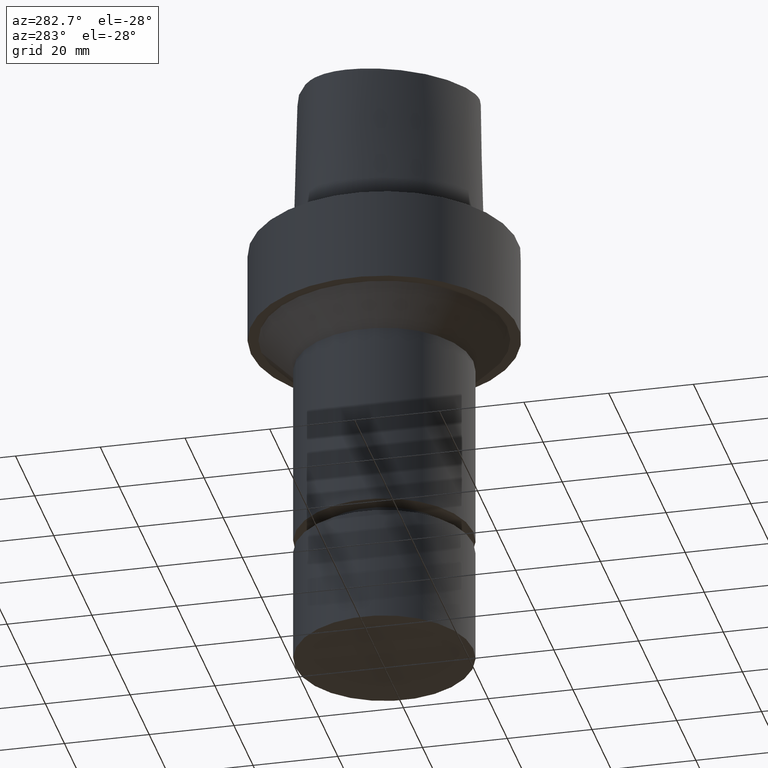
[diagram: clean part render]
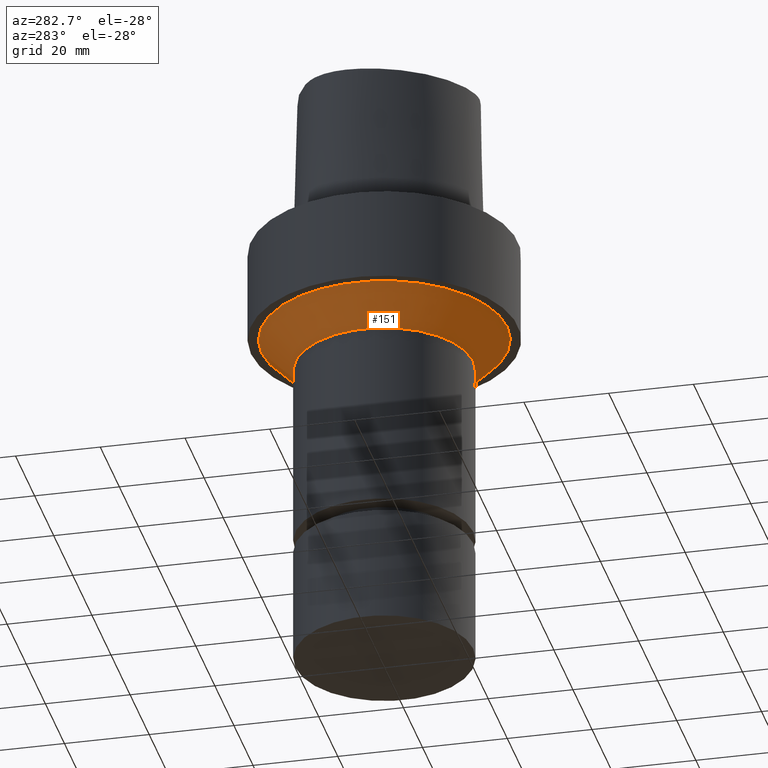
[diagram: same view with one face highlighted and labeled with its STEP entity id]
A machine part, auxiliary view. The second image highlights one B-rep face of the part: STEP entity #151.
In plain terms, the highlighted conical surface has half-angle 45 deg.
Its self-contained STEP definition (entity closure, byte-faithful):
#136=EDGE_CURVE('Unnamed[1]',#288,#288,#289,.T.);
#148=EDGE_CURVE('Unnamed[1]',#303,#303,#304,.T.);
#151=ADVANCED_FACE('Unnamed[1]',(#307,#308),#309,.T.);
#288=VERTEX_POINT('',#643);
#289=CIRCLE('',#644,21.0000000000002);
#303=VERTEX_POINT('',#663);
#304=CIRCLE('',#664,28.9999999999996);
#307=FACE_BOUND('',#668,.T.);
#308=FACE_BOUND('',#669,.T.);
#309=CONICAL_SURFACE('',#670,24.9999999999999,0.785398163397414);
#643=CARTESIAN_POINT('',(1.83697019872106E-015,21.0000000000002,-30.0000000000005));
#644=AXIS2_PLACEMENT_3D('',#836,#837,#838);
#663=CARTESIAN_POINT('',(1.34711147906212E-015,28.9999999999996,-22.0000000000006));
#664=AXIS2_PLACEMENT_3D('',#849,#850,#851);
#668=EDGE_LOOP('',(#853));
#669=EDGE_LOOP('',(#854));
#670=AXIS2_PLACEMENT_3D('',#855,#856,#857);
#836=CARTESIAN_POINT('',(1.83697019872106E-015,3.67394039744212E-015,-30.0000000000005));
#837=DIRECTION('',(6.12323399573677E-017,1.22464679914735E-016,-1.0));
#838=DIRECTION('',(-1.23259516440783E-032,1.0,1.22464679914735E-016));
#849=CARTESIAN_POINT('',(1.34711147906212E-015,2.69422295812425E-015,-22.0000000000006));
#850=DIRECTION('',(6.12323399573677E-017,1.22464679914735E-016,-1.0));
#851=DIRECTION('',(-1.23259516440783E-032,1.0,1.22464679914735E-016));
#853=ORIENTED_EDGE('',*,*,#136,.F.);
#854=ORIENTED_EDGE('',*,*,#148,.T.);
#855=CARTESIAN_POINT('',(1.59204083889159E-015,3.18408167778318E-015,-26.0000000000005));
#856=DIRECTION('',(-6.12323399573676E-017,-1.22464679914735E-016,1.0));
#857=DIRECTION('',(-1.23259516440783E-032,1.0,1.22464679914735E-016));